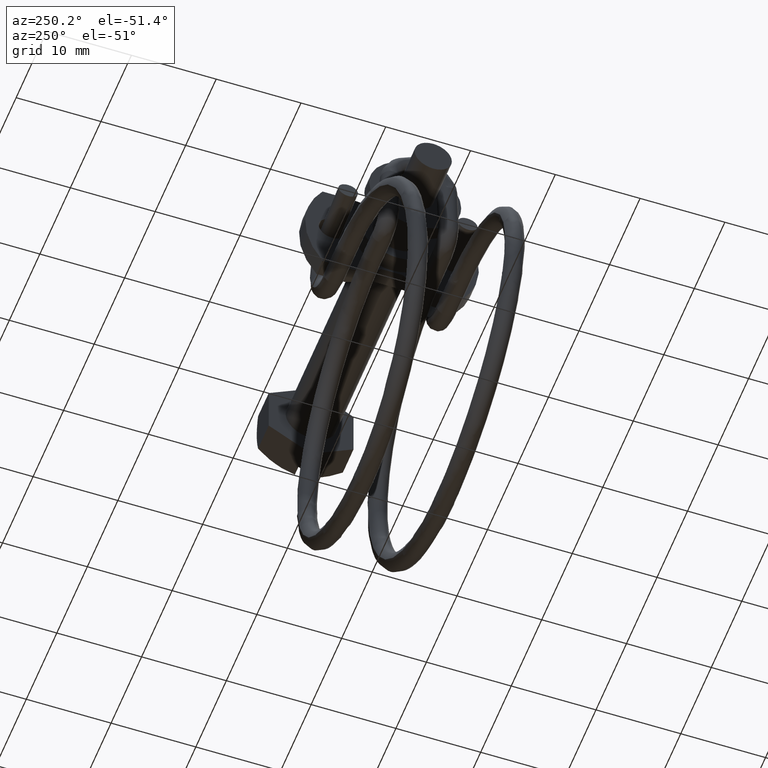
[diagram: clean part render]
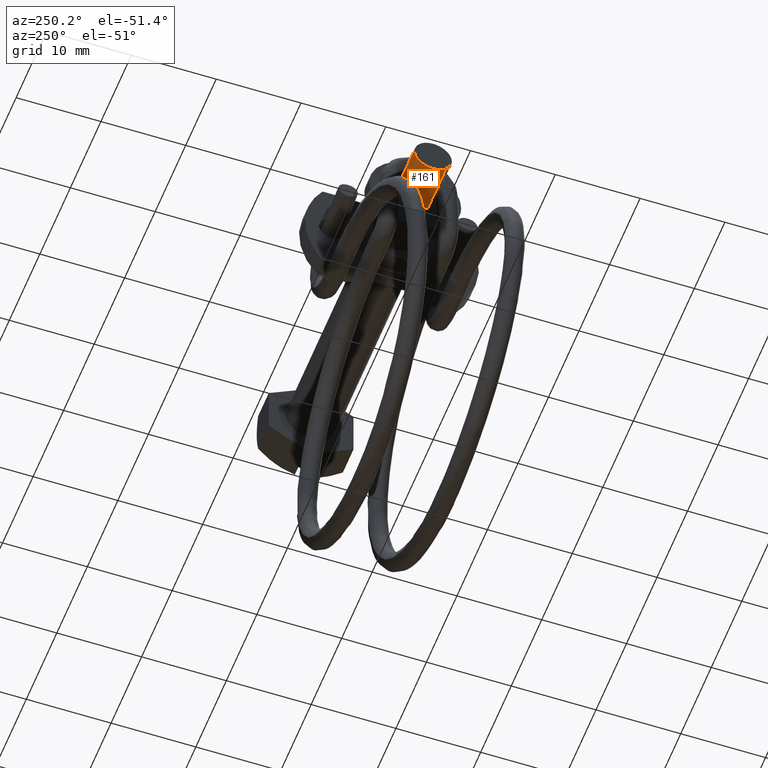
[diagram: same view with one face highlighted and labeled with its STEP entity id]
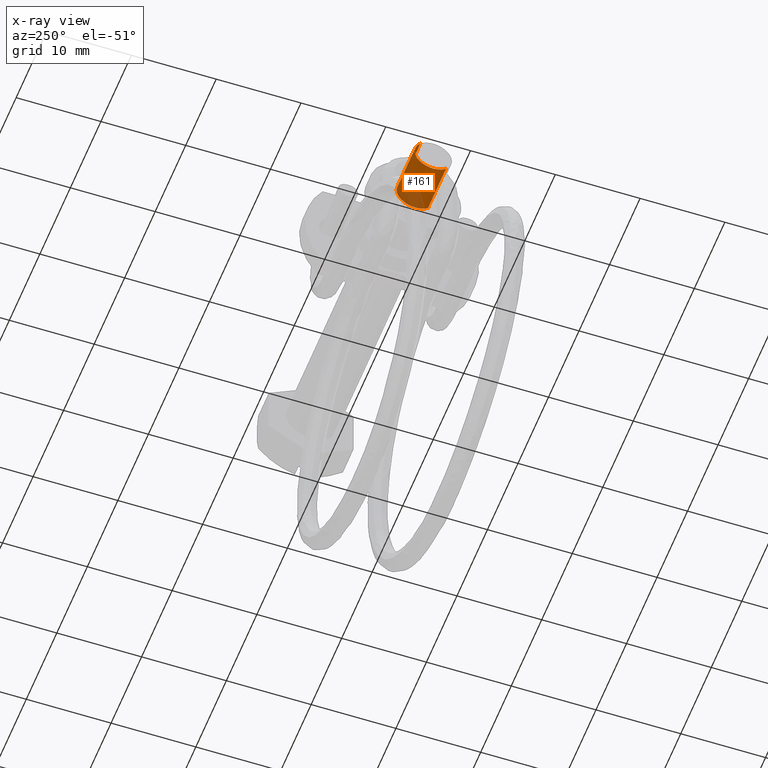
[diagram: x-ray of the same camera — body ghosted, the highlighted face saturated]
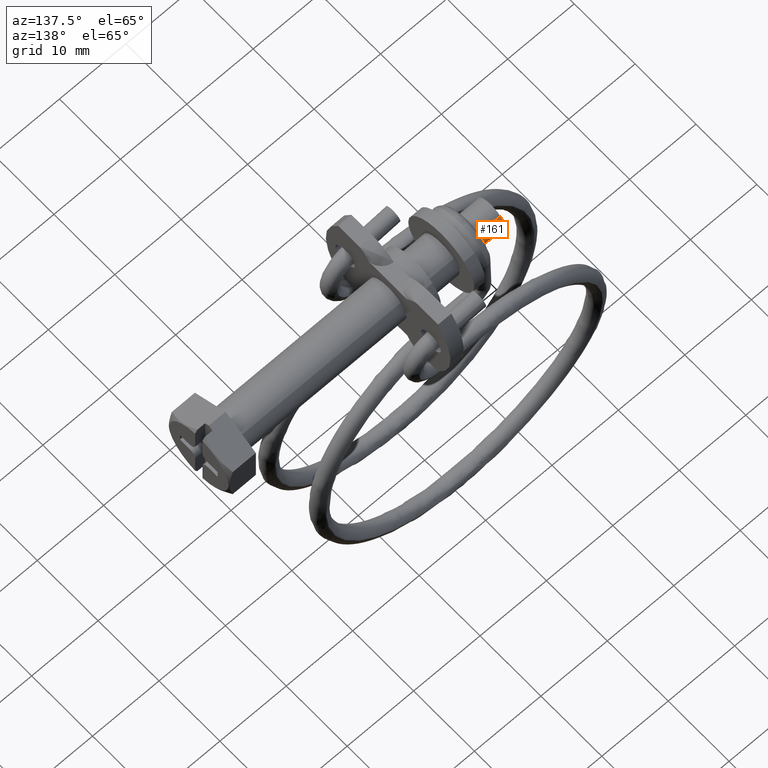
[diagram: same view with one face highlighted and labeled with its STEP entity id]
A machine part, auxiliary view. The second image highlights one B-rep face of the part: STEP entity #161.
The next image is the same camera in x-ray: the body ghosted, the highlighted face saturated — about 33% of this face is hidden behind the body in this view.
A second angle (auxiliary view) of the same face is appended — the face is thin or edge-on in the first view.
In plain terms, the highlighted face is a freeform B-spline surface patch.
Its self-contained STEP definition (entity closure, byte-faithful):
#12=CARTESIAN_POINT('',(-39.999999999998707,1.514379961763410,1.595823478633736));
#13=VERTEX_POINT('',#12);
#24=CARTESIAN_POINT('',(-40.0,2.199999999999892,-0.000000688626243));
#25=VERTEX_POINT('',#24);
#26=CARTESIAN_POINT('',(-39.999999999998707,1.514379961763410,1.595823478633736));
#27=CARTESIAN_POINT('',(-39.999999999998813,1.642574840996989,1.474225844943852));
#28=CARTESIAN_POINT('',(-39.999999999998877,1.821633755138224,1.257657889106465));
#29=CARTESIAN_POINT('',(-39.999999999999453,2.032038865055348,0.873344500517981));
#30=CARTESIAN_POINT('',(-39.999999999999467,2.165779044848932,0.474257362333734));
#31=CARTESIAN_POINT('',(-40.000000000000107,2.200024349730177,0.158089562207038));
#32=CARTESIAN_POINT('',(-40.0,2.199999999999892,-0.000000688626243));
#33=B_SPLINE_CURVE_WITH_KNOTS('',3,(#26,#27,#28,#29,#30,#31,#32),.UNSPECIFIED.,.F.,.U.,(4,1,1,1,4),(0.000000018194362,0.530066557843789,0.836953314954054,1.311214508736629,1.785484387283271),.UNSPECIFIED.);
#34=EDGE_CURVE('',#13,#25,#33,.T.);
#36=CARTESIAN_POINT('',(-40.0,0.0,-2.200000000000000));
#37=VERTEX_POINT('',#36);
#38=CARTESIAN_POINT('',(-40.0,2.199999999999892,-0.000000688626243));
#39=CARTESIAN_POINT('',(-40.000000000000107,2.200083633727676,-0.215990100387540));
#40=CARTESIAN_POINT('',(-39.999999999999943,2.142552652533611,-0.602917714333169));
#41=CARTESIAN_POINT('',(-39.999999999999993,1.946999848514319,-1.051415495837031));
#42=CARTESIAN_POINT('',(-40.000000000000142,1.694142369375736,-1.424871307780088));
#43=CARTESIAN_POINT('',(-39.999999999999723,1.386401058072138,-1.732617273794509));
#44=CARTESIAN_POINT('',(-40.000000000000433,0.956643138191101,-2.001084570824893));
#45=CARTESIAN_POINT('',(-40.000000000000213,0.494957182909140,-2.163066654508187));
#46=CARTESIAN_POINT('',(-39.999999999999908,0.161989338280729,-2.200028139803448));
#47=CARTESIAN_POINT('',(-40.0,0.0,-2.200000000000000));
#48=B_SPLINE_CURVE_WITH_KNOTS('',3,(#38,#39,#40,#41,#42,#43,#44,#45,#46,#47),.UNSPECIFIED.,.F.,.U.,(4,1,1,1,1,1,1,4),(0.000000063784402,0.647953010394163,1.160925450562281,1.457915945984562,1.997859870433215,2.456835237130624,2.969807295468701,3.455773214206329),.UNSPECIFIED.);
#49=EDGE_CURVE('',#25,#37,#48,.T.);
#51=CARTESIAN_POINT('',(-39.999999999998707,-1.514379961763412,-1.595823478633738));
#52=VERTEX_POINT('',#51);
#53=CARTESIAN_POINT('',(-40.0,0.0,-2.200000000000000));
#54=CARTESIAN_POINT('',(-39.999999999999801,-0.191392066595598,-2.200057911605378));
#55=CARTESIAN_POINT('',(-39.999999999999517,-0.556738806719225,-2.152024449608957));
#56=CARTESIAN_POINT('',(-39.999999999999211,-1.077508754195589,-1.944250961466707));
#57=CARTESIAN_POINT('',(-39.999999999998707,-1.375590305607868,-1.727613321639708));
#58=CARTESIAN_POINT('',(-39.999999999998707,-1.514379961763412,-1.595823478633738));
#59=B_SPLINE_CURVE_WITH_KNOTS('',3,(#53,#54,#55,#56,#57,#58),.UNSPECIFIED.,.F.,.U.,(4,1,1,4),(0.000000014778114,0.574163013735209,1.096126841938269,1.670289840899076),.UNSPECIFIED.);
#60=EDGE_CURVE('',#37,#52,#59,.T.);
#89=CARTESIAN_POINT('',(-33.952500000000001,1.514380066526258,1.595823616227032));
#90=CARTESIAN_POINT('',(-33.952500000000001,3.110203682753291,0.081443549700774));
#91=CARTESIAN_POINT('',(-33.952500000000001,1.595823616227032,-1.514380066526258));
#92=CARTESIAN_POINT('',(-33.952500000000001,0.081443549700774,-3.110203682753291));
#93=CARTESIAN_POINT('',(-33.952500000000001,-1.514380066526258,-1.595823616227032));
#94=CARTESIAN_POINT('',(-40.151187499999999,1.514380066526258,1.595823616227032));
#95=CARTESIAN_POINT('',(-40.151187499999992,3.110203682753291,0.081443549700774));
#96=CARTESIAN_POINT('',(-40.151187499999999,1.595823616227032,-1.514380066526258));
#97=CARTESIAN_POINT('',(-40.151187499999992,0.081443549700774,-3.110203682753291));
#98=CARTESIAN_POINT('',(-40.151187499999999,-1.514380066526258,-1.595823616227032));
#106=(BOUNDED_SURFACE()B_SPLINE_SURFACE(2,1,((#89,#94),(#90,#95),(#91,#96),(#92,#97),(#93,#98)),.UNSPECIFIED.,.F.,.F.,.U.)B_SPLINE_SURFACE_WITH_KNOTS((3,2,3),(2,2),(0.0,3.645079348883235,7.290158697766470),(0.0,6.198687499999998),.UNSPECIFIED.)GEOMETRIC_REPRESENTATION_ITEM()RATIONAL_B_SPLINE_SURFACE(((1.0,1.0),(0.707106781186548,0.707106781186548),(1.0,1.0),(0.707106781186548,0.707106781186548),(1.0,1.0)))REPRESENTATION_ITEM('')SURFACE());
#107=ORIENTED_EDGE('',*,*,#34,.F.);
#108=CARTESIAN_POINT('',(-34.100000000000001,1.514379961597733,1.595823478790957));
#109=VERTEX_POINT('',#108);
#110=CARTESIAN_POINT('',(-34.100000000000001,1.514379961597733,1.595823478790957));
#111=CARTESIAN_POINT('',(-39.999999999998707,1.514379961763410,1.595823478633736));
#112=QUASI_UNIFORM_CURVE('',1,(#110,#111),.UNSPECIFIED.,.F.,.U.);
#113=EDGE_CURVE('',#109,#13,#112,.T.);
#114=ORIENTED_EDGE('',*,*,#113,.F.);
#115=CARTESIAN_POINT('',(-34.100000000000001,2.199999999999892,-0.000000688626243));
#116=VERTEX_POINT('',#115);
#117=CARTESIAN_POINT('',(-34.100000000000001,1.514379961597733,1.595823478790957));
#118=CARTESIAN_POINT('',(-34.100000000000023,1.696664430543076,1.423100500028314));
#119=CARTESIAN_POINT('',(-34.100000000000009,1.921900907138778,1.120292175010077));
#120=CARTESIAN_POINT('',(-34.099999999999987,2.147187472148576,0.567199330446526));
#121=CARTESIAN_POINT('',(-34.099999999999987,2.200090879665120,0.223195748294094));
#122=CARTESIAN_POINT('',(-34.100000000000001,2.199999999999892,-0.000000688626243));
#123=B_SPLINE_CURVE_WITH_KNOTS('',3,(#117,#118,#119,#120,#121,#122),.UNSPECIFIED.,.F.,.U.,(4,1,1,4),(0.000000018194305,0.753254864369695,1.115927455423743,1.785484387511678),.UNSPECIFIED.);
#124=EDGE_CURVE('',#109,#116,#123,.T.);
#125=ORIENTED_EDGE('',*,*,#124,.T.);
#126=CARTESIAN_POINT('',(-34.100000000000001,0.0,-2.200000000000000));
#127=VERTEX_POINT('',#126);
#128=CARTESIAN_POINT('',(-34.100000000000001,2.199999999999892,-0.000000688626243));
#129=CARTESIAN_POINT('',(-34.100000000000001,2.200044557421627,-0.179991350240733));
#130=CARTESIAN_POINT('',(-34.099999999999973,2.156680126439372,-0.530941722354146));
#131=CARTESIAN_POINT('',(-34.099999999999959,1.957796888534273,-1.056341058682429));
#132=CARTESIAN_POINT('',(-34.100000000000222,1.672705783348191,-1.455864838358271));
#133=CARTESIAN_POINT('',(-34.099999999999810,1.358404521917063,-1.740636556218746));
#134=CARTESIAN_POINT('',(-34.100000000000072,1.065797578650485,-1.936154236014197));
#135=CARTESIAN_POINT('',(-34.100000000001252,0.620876106390669,-2.136740638929147));
#136=CARTESIAN_POINT('',(-34.099999999997657,0.243000756482120,-2.200136107493510));
#137=CARTESIAN_POINT('',(-34.100000000000001,0.0,-2.200000000000000));
#138=B_SPLINE_CURVE_WITH_KNOTS('',3,(#128,#129,#130,#131,#132,#133,#134,#135,#136,#137),.UNSPECIFIED.,.F.,.U.,(4,1,1,1,1,1,1,4),(0.000000063784402,0.539963366948951,1.052936096595046,1.673905210650292,1.997859870433215,2.321840601812009,2.726824624581033,3.455773214206329),.UNSPECIFIED.);
#139=EDGE_CURVE('',#116,#127,#138,.T.);
#140=ORIENTED_EDGE('',*,*,#139,.T.);
#141=CARTESIAN_POINT('',(-34.100000000000001,-1.514379961597735,-1.595823478790959));
#142=VERTEX_POINT('',#141);
#143=CARTESIAN_POINT('',(-34.100000000000001,0.0,-2.200000000000000));
#144=CARTESIAN_POINT('',(-34.100000000000051,-0.234903433304375,-2.200126689537578));
#145=CARTESIAN_POINT('',(-34.099999999999973,-0.591481125731191,-2.142317335975696));
#146=CARTESIAN_POINT('',(-34.100000000000030,-1.105335736365090,-1.923001635343954));
#147=CARTESIAN_POINT('',(-34.099999999999952,-1.369287853763790,-1.733616286016371));
#148=CARTESIAN_POINT('',(-34.100000000000001,-1.514379961597735,-1.595823478790959));
#149=B_SPLINE_CURVE_WITH_KNOTS('',3,(#143,#144,#145,#146,#147,#148),.UNSPECIFIED.,.F.,.U.,(4,1,1,4),(0.000000014777736,0.704654163923656,1.070025336562670,1.670289840670671),.UNSPECIFIED.);
#150=EDGE_CURVE('',#127,#142,#149,.T.);
#151=ORIENTED_EDGE('',*,*,#150,.T.);
#152=CARTESIAN_POINT('',(-34.100000000000001,-1.514379961597735,-1.595823478790959));
#153=CARTESIAN_POINT('',(-39.999999999998707,-1.514379961763412,-1.595823478633738));
#154=QUASI_UNIFORM_CURVE('',1,(#152,#153),.UNSPECIFIED.,.F.,.U.);
#155=EDGE_CURVE('',#142,#52,#154,.T.);
#156=ORIENTED_EDGE('',*,*,#155,.T.);
#157=ORIENTED_EDGE('',*,*,#60,.F.);
#158=ORIENTED_EDGE('',*,*,#49,.F.);
#159=EDGE_LOOP('',(#107,#114,#125,#140,#151,#156,#157,#158));
#160=FACE_OUTER_BOUND('',#159,.T.);
#161=ADVANCED_FACE('',(#160),#106,.T.);